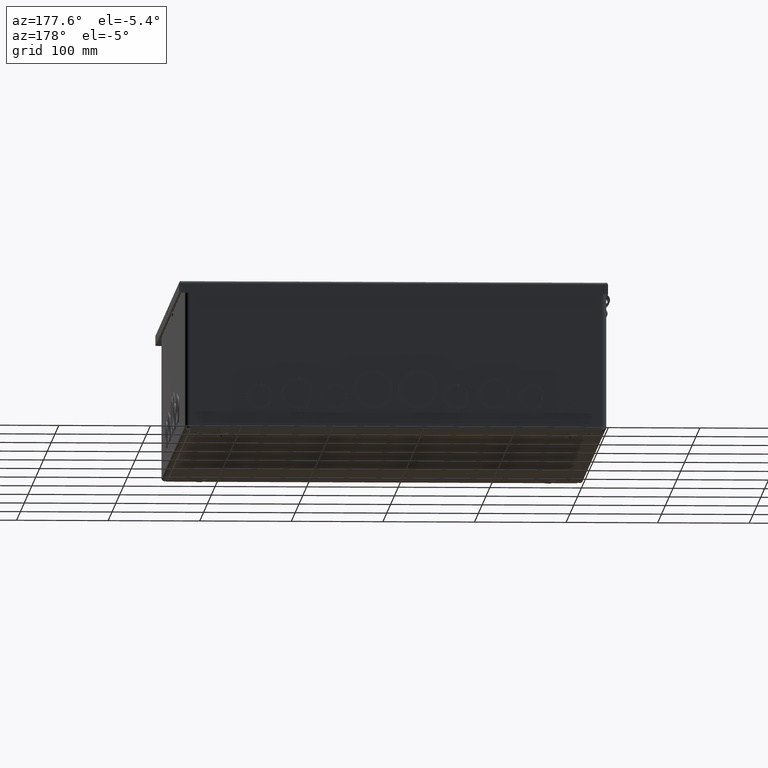
[diagram: clean part render]
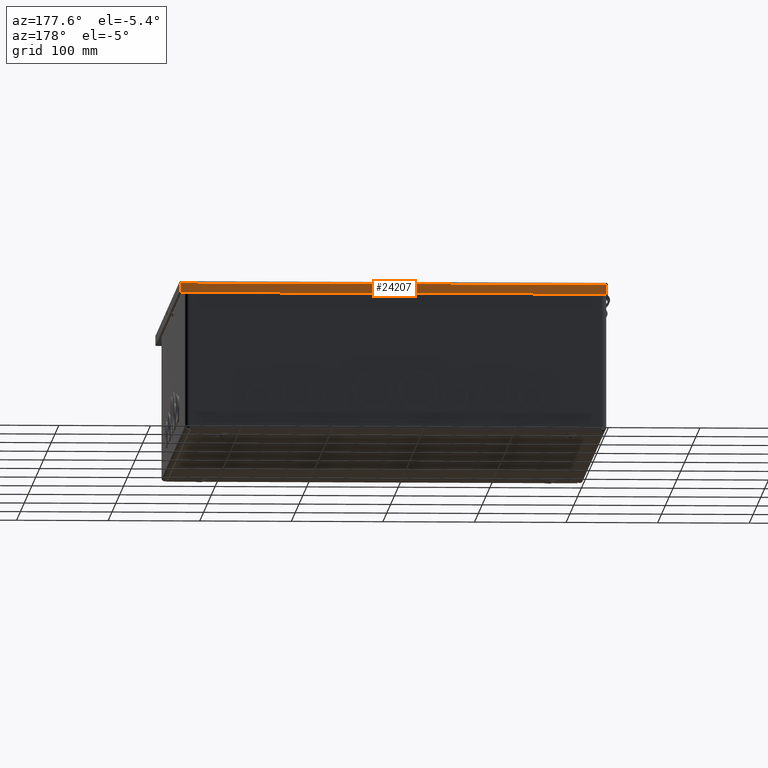
[diagram: same view with one face highlighted and labeled with its STEP entity id]
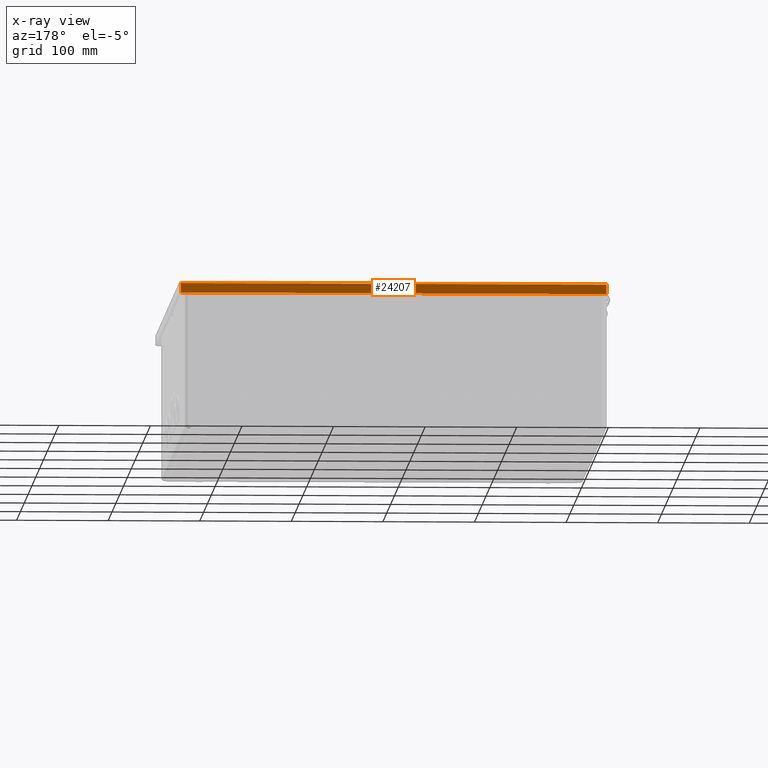
[diagram: x-ray of the same camera — body ghosted, the highlighted face saturated]
A machine part, auxiliary view. The second image highlights one B-rep face of the part: STEP entity #24207.
The next image is the same camera in x-ray: the body ghosted, the highlighted face saturated — about 0% of this face is hidden behind the body in this view.
In plain terms, the highlighted planar face has unit normal (0, 1, 0).
Its self-contained STEP definition (entity closure, byte-faithful):
#2666=LINE($,#40320,#5046);
#2672=LINE($,#40347,#5052);
#2676=LINE($,#40407,#5056);
#2678=LINE($,#40410,#5058);
#5046=VECTOR($,#32048,18.2904029130879);
#5052=VECTOR($,#32058,0.40675);
#5056=VECTOR($,#32064,0.40675);
#5058=VECTOR($,#32068,18.2904029130879);
#6954=FACE_OUTER_BOUND($,#8506,.T.);
#8506=EDGE_LOOP($,(#20659,#20660,#20661,#20662));
#11020=VERTEX_POINT($,#40318);
#11021=VERTEX_POINT($,#40319);
#11026=VERTEX_POINT($,#40346);
#11027=VERTEX_POINT($,#40406);
#14104=EDGE_CURVE($,#11020,#11021,#2666,.T.);
#14112=EDGE_CURVE($,#11026,#11021,#2672,.T.);
#14118=EDGE_CURVE($,#11020,#11027,#2676,.T.);
#14120=EDGE_CURVE($,#11027,#11026,#2678,.T.);
#20659=ORIENTED_EDGE($,*,*,#14104,.T.);
#20660=ORIENTED_EDGE($,*,*,#14112,.F.);
#20661=ORIENTED_EDGE($,*,*,#14120,.F.);
#20662=ORIENTED_EDGE($,*,*,#14118,.F.);
#21623=PLANE($,#26041);
#24207=ADVANCED_FACE($,(#6954),#21623,.T.);
#26041=AXIS2_PLACEMENT_3D($,#40411,#32069,#32070);
#32048=DIRECTION($,(1.,-1.08142068003551E-019,-5.82918498246668E-034));
#32058=DIRECTION($,(0.,-5.39030285815812E-015,1.));
#32064=DIRECTION($,(0.,5.39030285815812E-015,-1.));
#32068=DIRECTION($,(1.,8.24415942782286E-031,-1.52944271310201E-016));
#32069=DIRECTION('center_axis',(1.08142068003551E-019,1.,5.40106580167386E-015));
#32070=DIRECTION('ref_axis',(1.,0.,0.));
#40318=CARTESIAN_POINT('',(-9.14520145654396,12.21825,-0.0312499999999982));
#40319=CARTESIAN_POINT('',(9.14520145654396,12.21825,-0.0312499999999995));
#40320=CARTESIAN_POINT($,(-1.78116222000303E-015,12.21825,-0.0312499999999995));
#40346=CARTESIAN_POINT('',(9.14520145654396,12.21825,-0.438000000000001));
#40347=CARTESIAN_POINT($,(9.14520145654396,12.21825,-0.0312499999999995));
#40406=CARTESIAN_POINT('',(-9.14520145654396,12.21825,-0.437999999999999));
#40407=CARTESIAN_POINT($,(-9.14520145654396,12.21825,-0.0312499999999982));
#40410=CARTESIAN_POINT($,(-9.14520145654396,12.21825,-0.437999999999999));
#40411=CARTESIAN_POINT('Origin',(-7.64917438225994E-016,12.21825,-0.200421034701826));